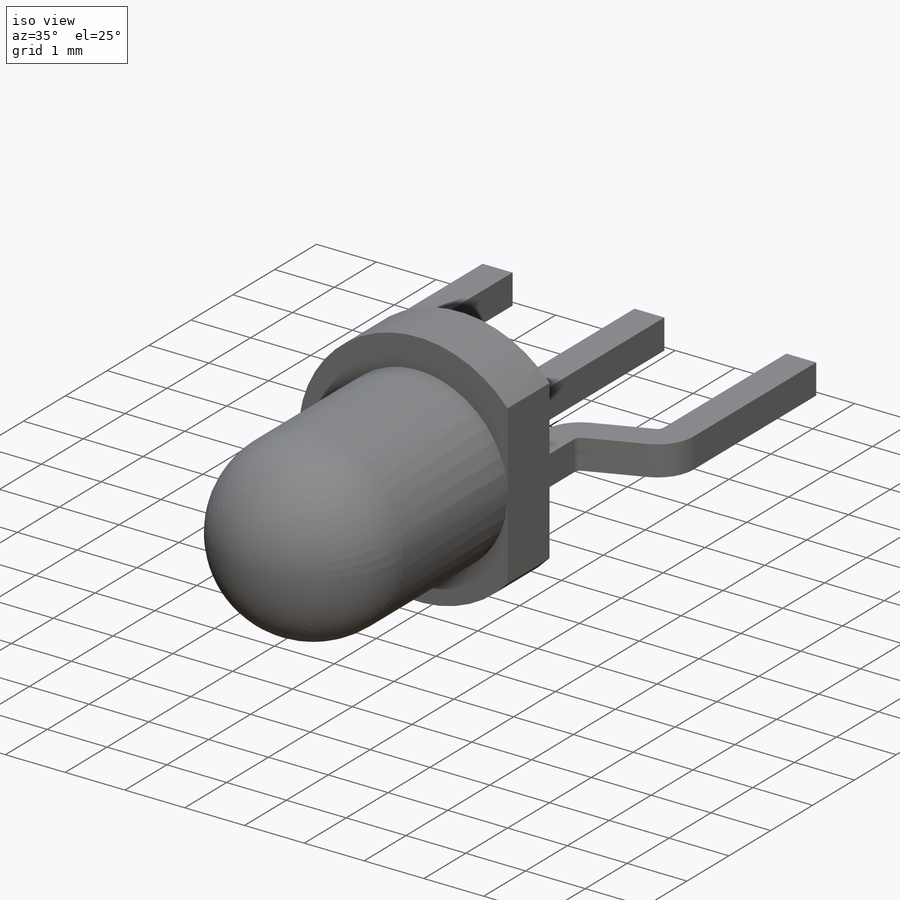
[diagram: iso view]
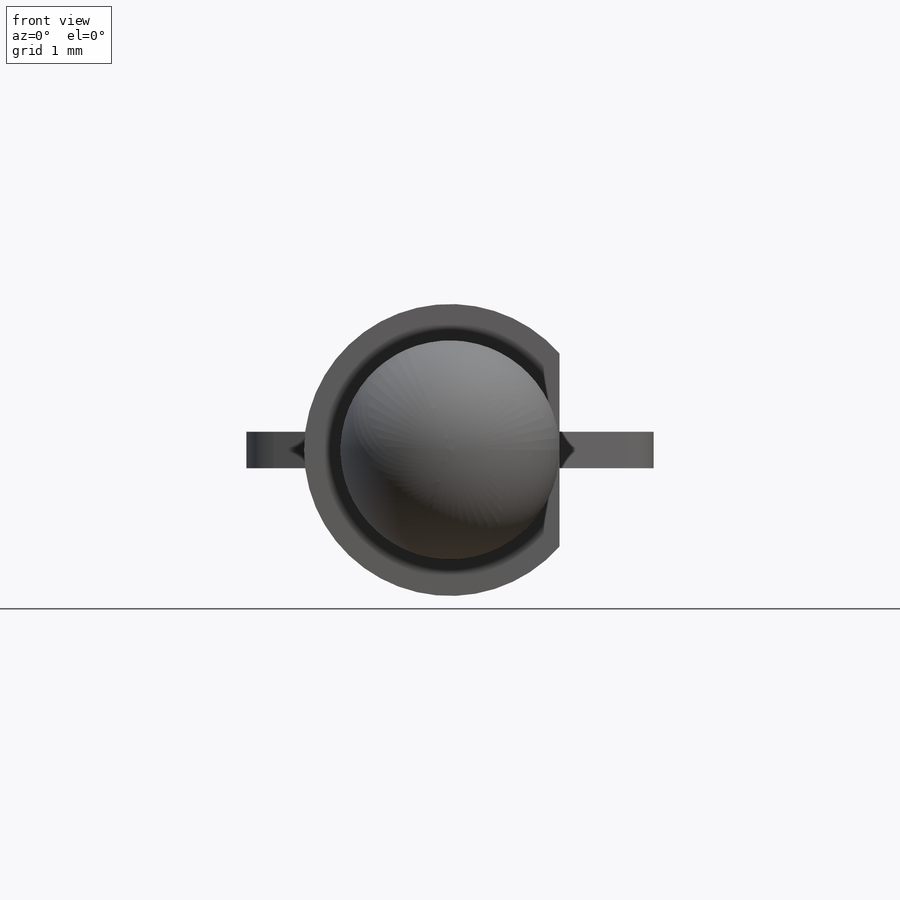
[diagram: front view]
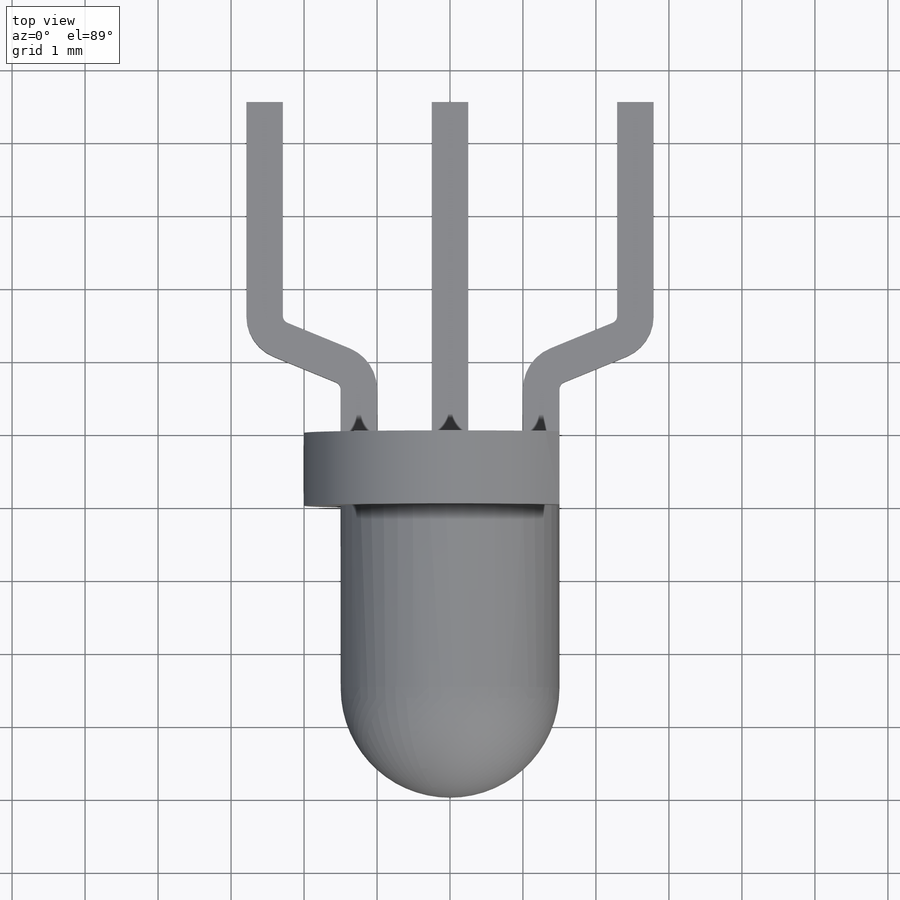
[diagram: top view]
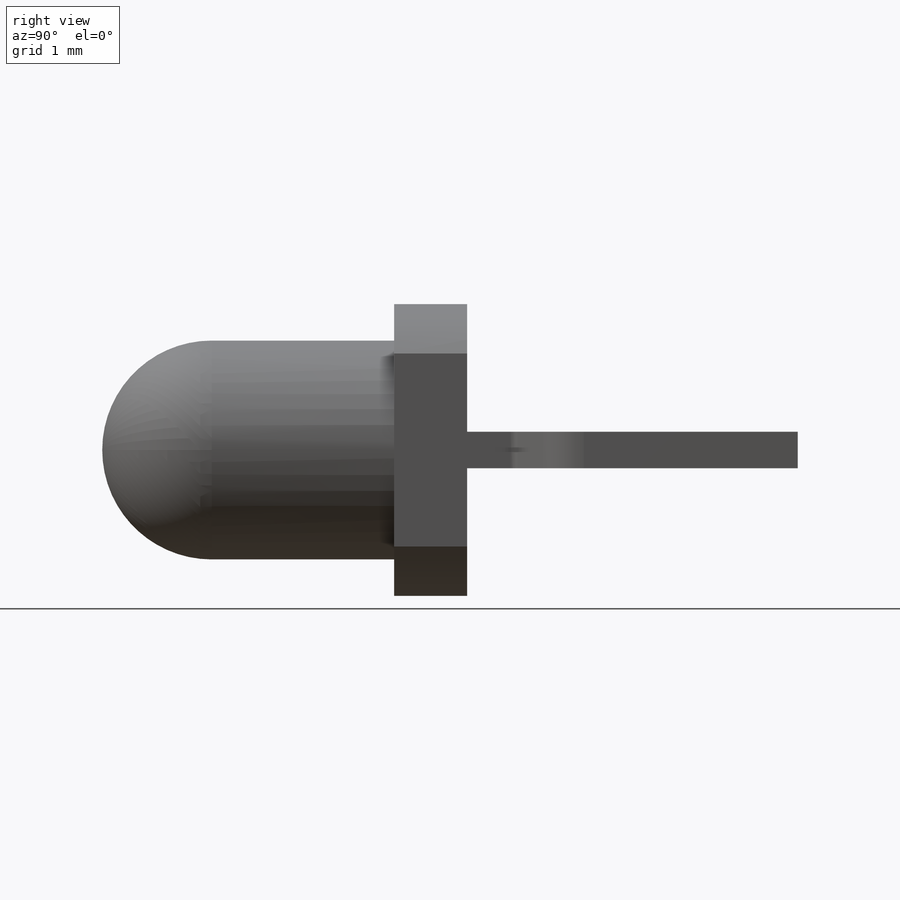
[diagram: right view]
SOLIDWORKS PART (.sldprt)
format: sldprt  version: not decoded by parser v0  size: 315,904 bytes
history: native  units: mm
features: sketch x12, sheet_metal_op x7, extrude x2, material x1, dome x1, cut_extrude x1, plane x1 + 6 further entries (+11 scaffold rows collapsed; 1 parser-record rows omitted)
feature tree (43):
  scaffold x11  (default folders/planes/origin — collapsed)
  material  "Material <not specified>"
  sketch  "Sketch1"  dims[D1=4.0mm]
  extrude  "Boss-Extrude1"  Depth=1mm
  sketch  "Sketch2"  dims[D1=~1.267837mm]
  extrude  "Boss-Extrude2"  Depth=2.5mm
  dome  "Dome1"
  sketch  "Sketch3"
  cut_extrude  "Cut-Extrude1"  [1 undecoded]
  plane  "Plane3"
  sketch  "Sketch8"  dims[D1=4.53mm D2=0.25mm]
  sheet_metal_op  "Sheet-Metal1"
  sheet_metal_op  "Base-Flange1"
  sketch  "Sketch11"  dims[D1=1.0mm D2=1.0mm D3=1.53mm D4=2.54mm]
  sheet_metal_op  "Sheet-Metal2"  Base-Flange2=0
  sheet_metal_op  "BaseBend2"
  sketch  "Sketch14"  dims[D1=2.54mm D2=1.0mm D3=1.0mm D4=1.53mm]
  sheet_metal_op  "Sheet-Metal3"  Base-Flange3=0
  sheet_metal_op  "BaseBend3"
  sheet_metal_op  "BaseBend4"
  "Flat-Pattern1"
  sketch  "Bend-Lines1"
  sketch  "Bounding-Box1"
  parser-record x1  (decoder bookkeeping rows leaked as tree rows — omitted from the tree; the rows remain in map.json)
  "Flat-Pattern2"
  sketch  "Bend-Lines2"
  sketch  "Bounding-Box2"
  "Flatten-<BaseBend2>2"
  "Flat-Pattern3"
  sketch  "Bend-Lines3"
  sketch  "Bounding-Box3"
  "Flatten-<BaseBend3>1"
  "Flatten-<BaseBend4>1"
decode coverage: 9 of 23 modeling features carry decoded parameters; 6 rows unclassified (native names shown)
note: ~ marks probable driven/reference dimensions
note: 1 parameter value undecoded
note: suppression state not decoded; provenance and decode notes live in map.json
